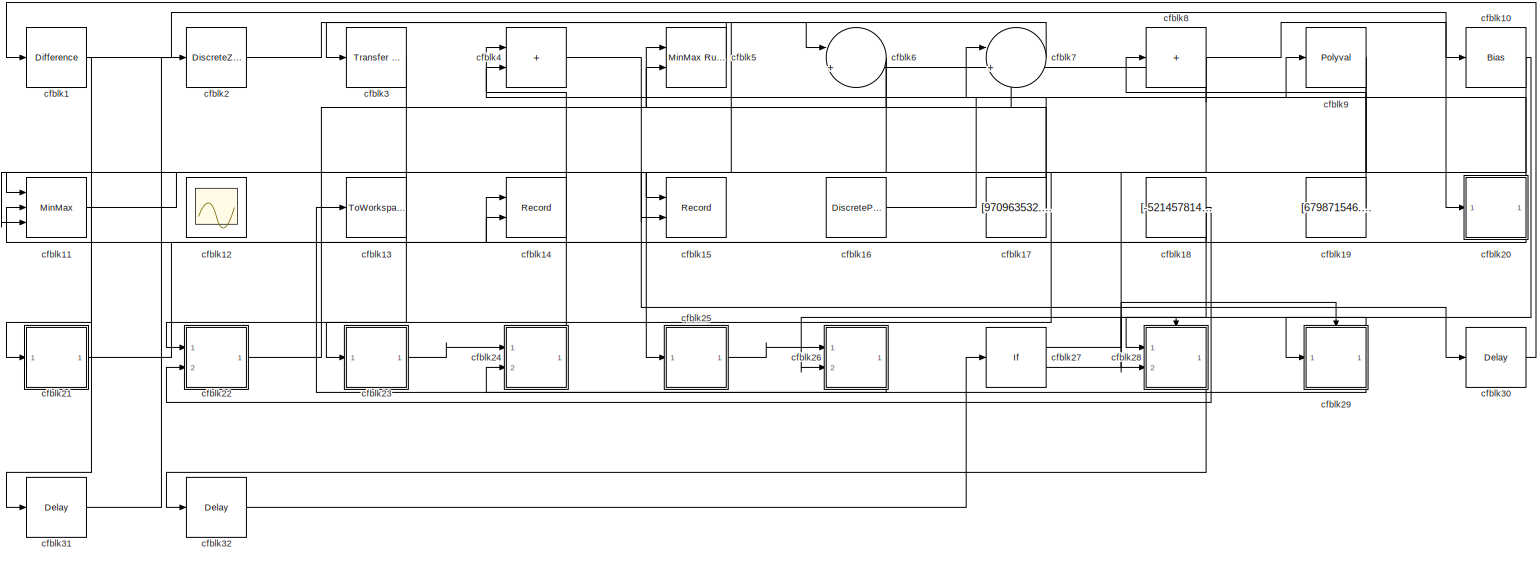
[diagram: root canvas - part 1/1, most of the canvas]
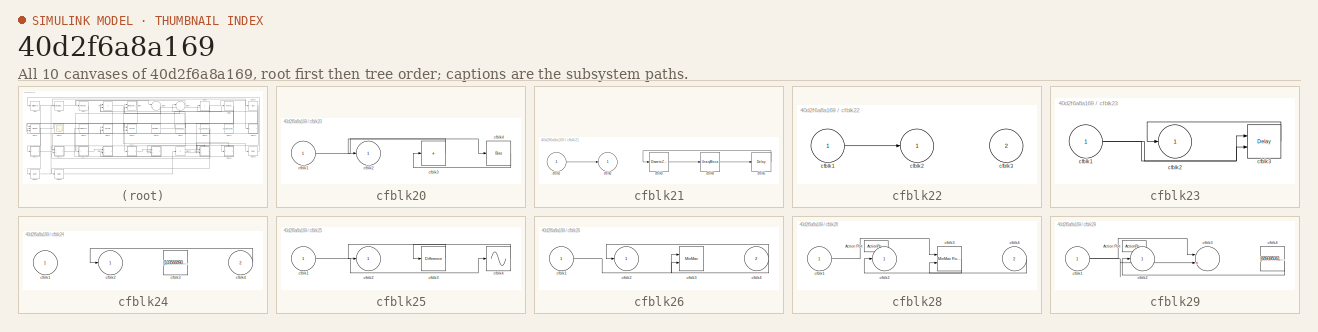
[diagram: thumbnail index - all 10 canvases of the model, root first then tree order]
MODEL slx_40d2f6a8a169
KIND model
CONFIG AbsTol = auto
CONFIG EnableMultiTasking = off
CONFIG FixedStep = auto
CONFIG MaxStep = auto
CONFIG MinStep = auto
CONFIG RelTol = 1e-3
CONFIG SampleTimeConstraint = Unconstrained
CONFIG SolverName = VariableStepAuto
CONFIG StartTime = 0.0
CONFIG StopTime = 10.0
BLOCK [Reference] cfblk1  REF=simulink/Discrete/Difference
  Ports = [1, 1]
  SourceBlock = simulink/Discrete/Difference
  SourceProductBaseCode = SL
  SourceType = Difference
BLOCK [Bias] cfblk10
  Bias = [-790265827.470955]
  SaturateOnIntegerOverflow = off
BLOCK [MinMax] cfblk11
  Function = max
  Inputs = 3
  Ports = [3, 1]
BLOCK [Scope] cfblk12
  Floating = on
  NumInputPorts = 1
  Ports = []
BLOCK [ToWorkspace] cfblk13
  FixptAsFi = on
  MaxDataPoints = inf
  Ports = [1]
  SampleTime = -1
  SaveFormat = Timeseries
  VariableName = hvrpjnk
BLOCK [Record] cfblk14
  CompatibilityTag = XY
  FileSettingsInternal = {"entries":[{"content":{"excelSettings":{"content":{},"type":"Streamout.ExcelSettings"}},"type":"Streamout.FileSettingStorage","uuid":"5194d8ca-deb6-4edd-b001-44b51bd05890"}],"packageUris":["http://schema.mathworks.com/mf0/streamout_blocks/R2020a"],"version":"1.0"}
  Layout = [1 1]
  Ports = [2]
  SignalsInternal = {"entries":[{"content":{"signals":[{"content":{"blockPath":["sampleModel201/cfblk14"],"channel":[],"dimensions":[1],"domain":"sampleModel201/cfblk14","lineColor":"#a2142f","plots":[1],"port":1,"sid":[""],"signalID":7685,"signalName":"cfblk21"},"type":"RecordBlkView.Signal","uuid":"b1914e17-5de9-4d07-bd4e-10ac7d4d30b7"},{"content":{"blockPath":["sampleModel201/cfblk14"],"channel":[],"dimensions":[1...<+383ch>
  VisualizationBindings = {"xyplotplugin":{"info":[{"series":[{"bindingParametersList":[{"parameter":"X-Axis","signalID":7685,"signalName":"cfblk21"},{"parameter":"Y-Axis","signalID":7689,"signalName":"cfblk20"}],"seriesID":39296}],"subplotID":1}]}}
BLOCK [Record] cfblk15
  CompatibilityTag = XY
  FileSettingsInternal = {"entries":[{"content":{"excelSettings":{"content":{},"type":"Streamout.ExcelSettings"}},"type":"Streamout.FileSettingStorage","uuid":"312659b0-d3c8-4785-8936-697f5d01142d"}],"packageUris":["http://schema.mathworks.com/mf0/streamout_blocks/R2020a"],"version":"1.0"}
  Layout = [1 1]
  Ports = [2]
  SignalsInternal = {"entries":[{"content":{"signals":[{"content":{"blockPath":["sampleModel201/cfblk15"],"channel":[],"dimensions":[1],"domain":"sampleModel201/cfblk15","lineColor":"#a2142f","plots":[1],"port":1,"sid":[""],"signalID":7693,"signalName":"cfblk11"},"type":"RecordBlkView.Signal","uuid":"acdee433-706e-43ae-995f-6c743a2ff393"},{"content":{"blockPath":["sampleModel201/cfblk15"],"channel":[],"dimensions":[1...<+383ch>
  VisualizationBindings = {"xyplotplugin":{"info":[{"series":[{"bindingParametersList":[{"parameter":"X-Axis","signalID":7693,"signalName":"cfblk11"},{"parameter":"Y-Axis","signalID":7697,"signalName":"cfblk10"}],"seriesID":23501}],"subplotID":1}]}}
BLOCK [DiscretePulseGenerator] cfblk16
  Amplitude = [-839947818.489038]
  Period = [47133683.636986]
  PhaseDelay = [5.000000]
  Ports = [0, 1]
  PulseType = Time based
  PulseWidth = 5
BLOCK [Constant] cfblk17
  SampleTime = 1
  Value = [970963532.255476]
BLOCK [Constant] cfblk18
  SampleTime = 1
  Value = [-521457814.829251]
BLOCK [Constant] cfblk19
  SampleTime = 1
  Value = [679871546.871065]
BLOCK [DiscreteZeroPole] cfblk2
  Gain = 1
  Poles = [0 0.5]
BLOCK [SubSystem] cfblk20
  Ports = [1, 1]
  RequestExecContextInheritance = off
BLOCK [Inport] cfblk20/cfblk1
BLOCK [Outport] cfblk20/cfblk2
BLOCK [Sum] cfblk20/cfblk3
  IconShape = rectangular
  Inputs = +
  Ports = [1, 1]
BLOCK [Bias] cfblk20/cfblk4
  Bias = [65468039.746057]
  SaturateOnIntegerOverflow = off
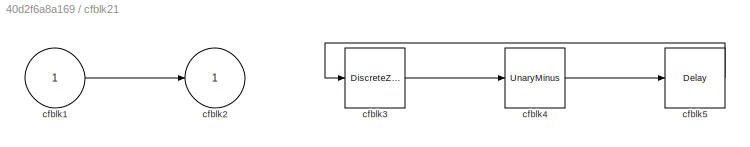
BLOCK [SubSystem] cfblk21
  Ports = [1, 1]
  RequestExecContextInheritance = off
BLOCK [Inport] cfblk21/cfblk1
BLOCK [Outport] cfblk21/cfblk2
BLOCK [DiscreteZeroPole] cfblk21/cfblk3
  Gain = 1
  Poles = [0 0.5]
BLOCK [UnaryMinus] cfblk21/cfblk4
BLOCK [Delay] cfblk21/cfblk5
  InputPortMap = u0
  Ports = [1, 1]
  SampleTime = 1
BLOCK [SubSystem] cfblk22
  Ports = [2, 1]
  RequestExecContextInheritance = off
BLOCK [Inport] cfblk22/cfblk1
BLOCK [Outport] cfblk22/cfblk2
BLOCK [Inport] cfblk22/cfblk3
  Port = 2
BLOCK [SubSystem] cfblk23
  Ports = [1, 1]
  RequestExecContextInheritance = off
BLOCK [Inport] cfblk23/cfblk1
BLOCK [Outport] cfblk23/cfblk2
BLOCK [Delay] cfblk23/cfblk3
  DelayLengthSource = Input port
  InputPortMap = u0,p1
  Ports = [2, 1]
  SampleTime = 1
BLOCK [SubSystem] cfblk24
  Ports = [2, 1]
  RequestExecContextInheritance = off
BLOCK [Inport] cfblk24/cfblk1
BLOCK [Outport] cfblk24/cfblk2
BLOCK [Constant] cfblk24/cfblk3
  SampleTime = 1
  Value = [103566890.028713]
BLOCK [Inport] cfblk24/cfblk4
  Port = 2
BLOCK [SubSystem] cfblk25
  Ports = [1, 1]
  RequestExecContextInheritance = off
BLOCK [Inport] cfblk25/cfblk1
BLOCK [Outport] cfblk25/cfblk2
BLOCK [Reference] cfblk25/cfblk3  REF=simulink/Discrete/Difference
  Ports = [1, 1]
  SourceBlock = simulink/Discrete/Difference
  SourceProductBaseCode = SL
  SourceType = Difference
BLOCK [Sin] cfblk25/cfblk4
  Ports = [1, 1]
  SampleTime = 0
  TimeSource = Use external signal
BLOCK [SubSystem] cfblk26
  Ports = [2, 1]
  RequestExecContextInheritance = off
BLOCK [Inport] cfblk26/cfblk1
BLOCK [Outport] cfblk26/cfblk2
BLOCK [MinMax] cfblk26/cfblk3
  Function = max
  Inputs = 2
  Ports = [2, 1]
BLOCK [Inport] cfblk26/cfblk4
  Port = 2
BLOCK [If] cfblk27
  IfExpression = u1 >= 0
  Ports = [1, 2]
  SampleTime = 1
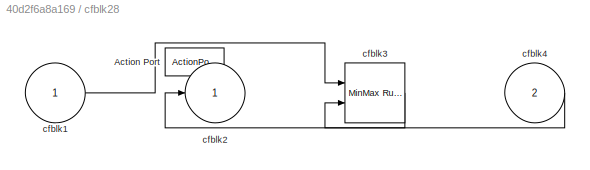
BLOCK [SubSystem] cfblk28
  Ports = [2, 1, 0, 0, 0, 0, 0, 1]
  RequestExecContextInheritance = off
  TreatAsAtomicUnit = on
BLOCK [ActionPort] cfblk28/Action Port
  ActionPortLabel = if(u1 >= 0)
BLOCK [Inport] cfblk28/cfblk1
BLOCK [Outport] cfblk28/cfblk2
BLOCK [Reference] cfblk28/cfblk3  REF=simulink/Math
Operations/MinMax
Running
Resettable
  Ports = [2, 1]
  SourceBlock = simulink/Math\nOperations/MinMax\nRunning\nResettable
  SourceProductBaseCode = SL
  SourceType = MinMax Running Resettable
BLOCK [Inport] cfblk28/cfblk4
  Port = 2
BLOCK [SubSystem] cfblk29
  Ports = [1, 1, 0, 0, 0, 0, 0, 1]
  RequestExecContextInheritance = off
  TreatAsAtomicUnit = on
BLOCK [ActionPort] cfblk29/Action Port
  ActionPortLabel = else
BLOCK [Inport] cfblk29/cfblk1
BLOCK [Outport] cfblk29/cfblk2
BLOCK [Sum] cfblk29/cfblk3
  Inputs = |++
  Ports = [2, 1]
BLOCK [Constant] cfblk29/cfblk4
  SampleTime = 1
  Value = [689395061.863537]
BLOCK [Reference] cfblk3  REF=simulink/Discrete/Transfer Fcn
Lead or Lag
  Ports = [1, 1]
  SourceBlock = simulink/Discrete/Transfer Fcn\nLead or Lag
  SourceProductBaseCode = SL
  SourceType = Lead or Lag Compensator
BLOCK [Delay] cfblk30
  InputPortMap = u0
  Ports = [1, 1]
  SampleTime = 1
BLOCK [Delay] cfblk31
  InputPortMap = u0
  Ports = [1, 1]
  SampleTime = 1
BLOCK [Delay] cfblk32
  InputPortMap = u0
  Ports = [1, 1]
  SampleTime = 1
BLOCK [Sum] cfblk4
  IconShape = rectangular
  Ports = [2, 1]
BLOCK [Reference] cfblk5  REF=simulink/Math
Operations/MinMax
Running
Resettable
  Ports = [2, 1]
  SourceBlock = simulink/Math\nOperations/MinMax\nRunning\nResettable
  SourceProductBaseCode = SL
  SourceType = MinMax Running Resettable
BLOCK [Sum] cfblk6
  Inputs = |++
  Ports = [2, 1]
BLOCK [Sum] cfblk7
  Inputs = |++
  Ports = [2, 1]
BLOCK [Sum] cfblk8
  IconShape = rectangular
  Inputs = +
  Ports = [1, 1]
BLOCK [Polyval] cfblk9
  Coefs = [ +2.081618890e-019, -1.441693666e-014, +4.719686976e-010, -8.536869453e-006, +1.621573104e-001, -8.087801117e+001 ]
NET cfblk10:1 -> cfblk15:2, cfblk29:1
NET cfblk11:1 -> cfblk15:1, cfblk31:1
LINE cfblk16:1 -> cfblk9:1
NET cfblk17:1 -> cfblk5:1, cfblk7:1
NET cfblk18:1 -> cfblk11:2, cfblk22:2, cfblk26:2
LINE cfblk19:1 -> cfblk8:1
NET cfblk1:1 -> cfblk20:1, cfblk21:1
LINE cfblk20/cfblk1:1 -> cfblk20/cfblk4:1
LINE cfblk20/cfblk3:1 -> cfblk20/cfblk2:1
LINE cfblk20/cfblk4:1 -> cfblk20/cfblk3:1
NET cfblk20:1 -> cfblk14:2, cfblk4:2
LINE cfblk21/cfblk1:1 -> cfblk21/cfblk2:1
LINE cfblk21/cfblk3:1 -> cfblk21/cfblk4:1
LINE cfblk21/cfblk4:1 -> cfblk21/cfblk5:1
LINE cfblk21/cfblk5:1 -> cfblk21/cfblk3:1
LINE cfblk21:1 -> cfblk14:1
LINE cfblk22/cfblk1:1 -> cfblk22/cfblk2:1
LINE cfblk22:1 -> cfblk7:2
NET cfblk23/cfblk1:1 -> cfblk23/cfblk3:1, cfblk23/cfblk3:2
LINE cfblk23/cfblk3:1 -> cfblk23/cfblk2:1
LINE cfblk23:1 -> cfblk24:1
LINE cfblk24/cfblk4:1 -> cfblk24/cfblk2:1
LINE cfblk24:1 -> cfblk4:1
LINE cfblk25/cfblk1:1 -> cfblk25/cfblk4:1
LINE cfblk25/cfblk3:1 -> cfblk25/cfblk2:1
LINE cfblk25/cfblk4:1 -> cfblk25/cfblk3:1
LINE cfblk25:1 -> cfblk26:1
LINE cfblk26/cfblk1:1 -> cfblk26/cfblk3:1
NET cfblk26/cfblk4:1 -> cfblk26/cfblk2:1, cfblk26/cfblk3:2
LINE cfblk26:1 -> cfblk13:1
LINE cfblk27:1 -> cfblk28:ifaction
LINE cfblk27:2 -> cfblk29:ifaction
LINE cfblk28/cfblk1:1 -> cfblk28/cfblk3:1
LINE cfblk28/cfblk3:1 -> cfblk28/cfblk2:1
LINE cfblk28/cfblk4:1 -> cfblk28/cfblk3:2
LINE cfblk28:1 -> cfblk32:1
NET cfblk29/cfblk1:1 -> cfblk29/cfblk3:1, cfblk29/cfblk3:2
LINE cfblk29/cfblk4:1 -> cfblk29/cfblk2:1
NET cfblk29:1 -> cfblk24:2, cfblk28:1
LINE cfblk2:1 -> cfblk6:1
LINE cfblk30:1 -> cfblk1:1
LINE cfblk31:1 -> cfblk2:1
LINE cfblk32:1 -> cfblk27:1
LINE cfblk3:1 -> cfblk22:1
LINE cfblk4:1 -> cfblk30:1
LINE cfblk5:1 -> cfblk3:1
NET cfblk6:1 -> cfblk25:1, cfblk5:2
LINE cfblk7:1 -> cfblk11:1
NET cfblk8:1 -> cfblk10:1, cfblk28:2, cfblk6:2
NET cfblk9:1 -> cfblk11:3, cfblk23:1
note: NET lines group one-source signal fan-out (src -> all destinations, sorted); 1:1 wires keep LINE
